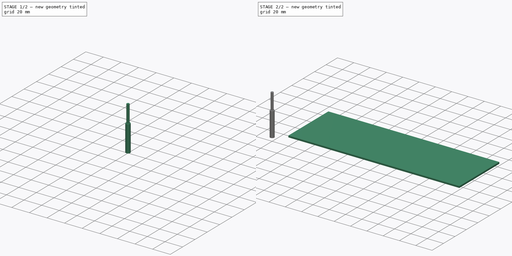
[diagram: build sequence overview — one tinted view per stage of 2, left to right]
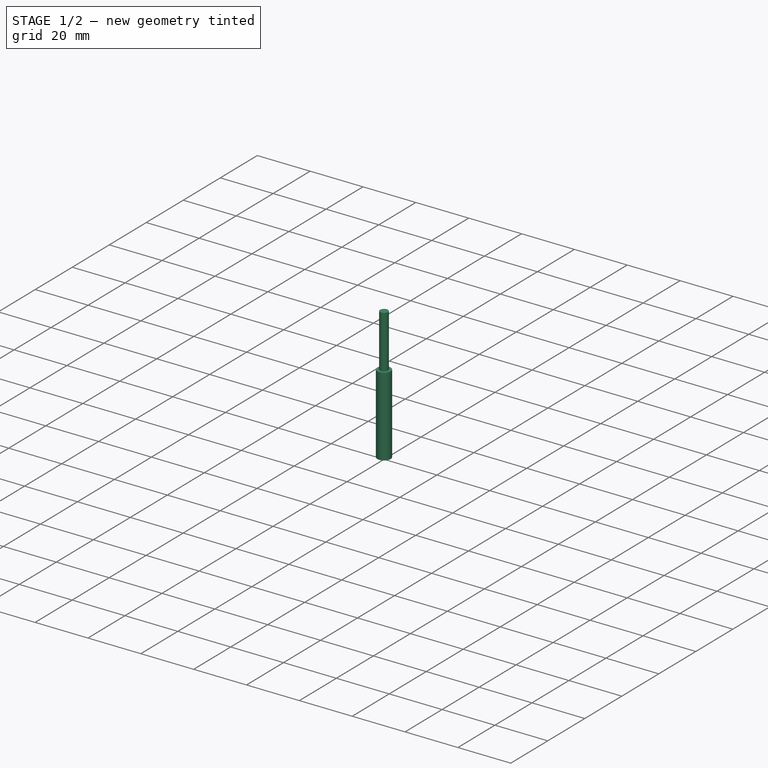
[diagram: stage 1 of 2 — iso view after this stage's code; geometry added in this stage tinted green]
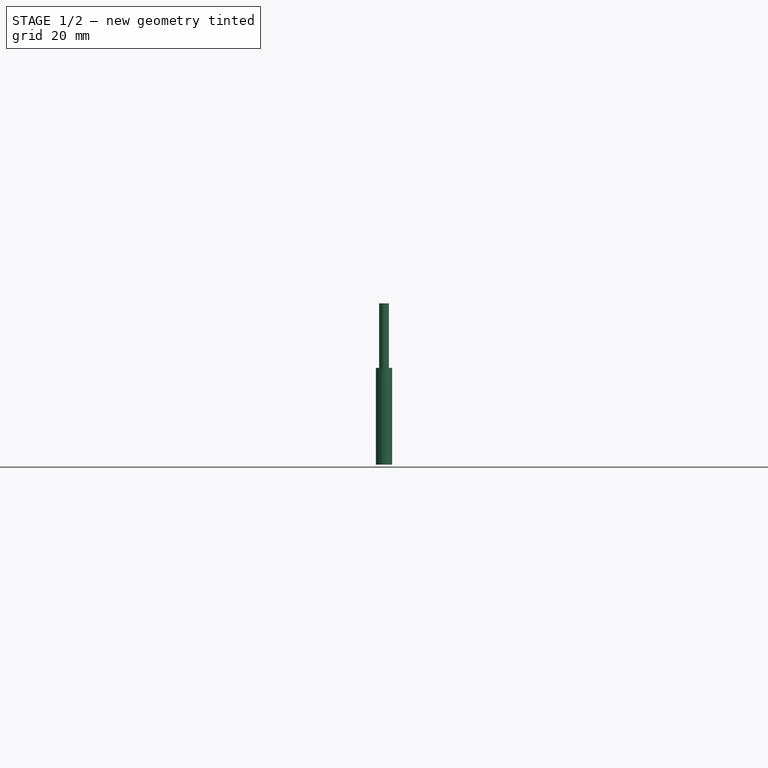
[diagram: stage 1 of 2 — front view after this stage's code; geometry added in this stage tinted green]
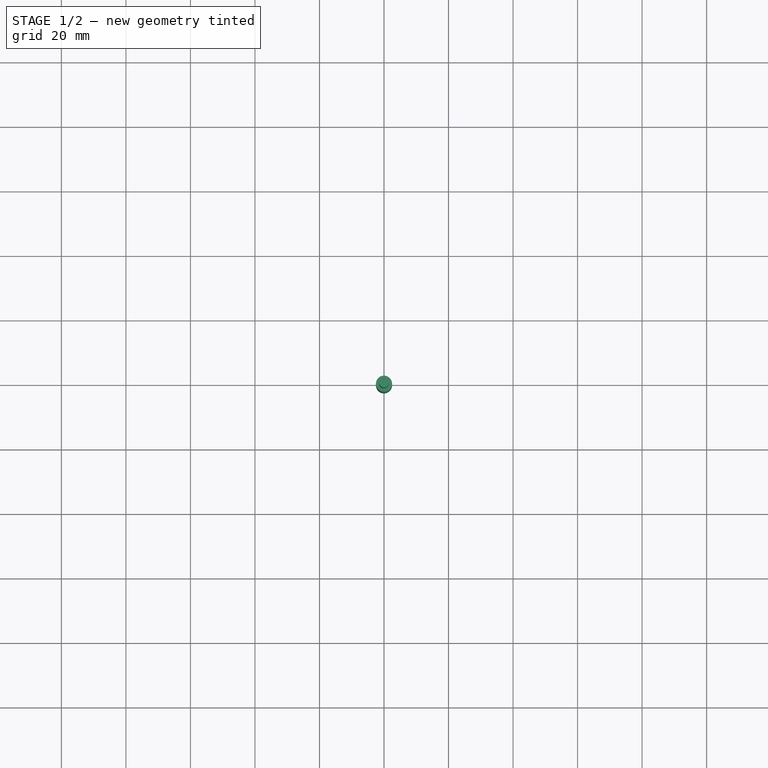
[diagram: stage 1 of 2 — top view after this stage's code; geometry added in this stage tinted green]
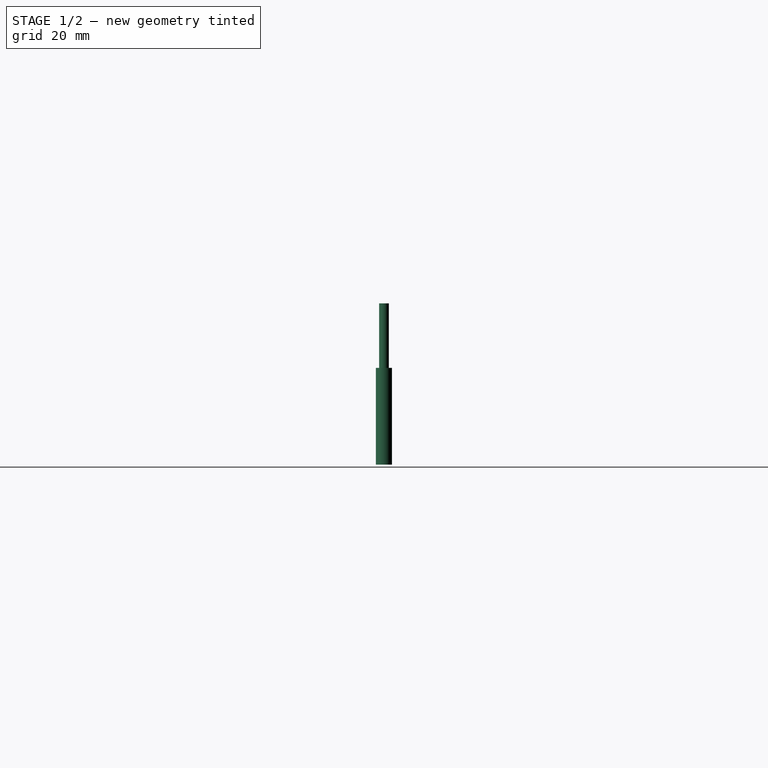
[diagram: stage 1 of 2 — right view after this stage's code; geometry added in this stage tinted green]
FCSTD DOCUMENT  (FreeCAD 1.0R39109 (Git))
Label: engineframe
License: All rights reserved
LicenseURL: https://en.wikipedia.org/wiki/All_rights_reserved
objects: Sketcher::SketchObject×3, App::DocumentObjectGroup×3, Path::FeaturePython×3, Part::FeaturePython×2, PartDesign::Body×1, App::FeaturePython×1, Part::Part2DObjectPython×1
note: 10 computed .brp shape members not serialized (recipe doc carries the construction recipe); baked Part::Feature solids carry a one-line shape summary decoded from their .brp

FEATURE [Sketcher::SketchObject] Sketch  label="A4"
  ArcFitTolerance = 1e-06
  AttachmentSupport = -> [XY_Plane]
  FullyConstrained = true
  MakeInternals = false
  MapMode = 5
  sketch-geometry (4):
    g0: LineSegment StartX=0 StartY=0 StartZ=0 EndX=270 EndY=0 EndZ=0
    g1: LineSegment StartX=270 StartY=0 StartZ=0 EndX=270 EndY=180 EndZ=0
    g2: LineSegment StartX=270 StartY=180 StartZ=0 EndX=0 EndY=180 EndZ=0
    g3: LineSegment StartX=0 StartY=180 StartZ=0 EndX=0 EndY=0 EndZ=0
  constraints (12):
    c: Coincident(g0,g1)
    c: Coincident(g1,g2)
    c: Coincident(g2,g3)
    c: Coincident(g3,g0)
    c: Horizontal(g0)
    c: Horizontal(g2)
    c: Vertical(g1)
    c: Vertical(g3)
    c: PointOnObject(g0,g-2)
    c: DistanceX(g2,g2) = 270
    c: DistanceY(g3,g3) = 180
    c: PointOnObject(g0,g-1)
FEATURE [PartDesign::Body] Body
  AllowCompound = false
  Group = -> [Sketch]
  Origin = -> Origin
FEATURE [Sketcher::SketchObject] Sketch001
  ArcFitTolerance = 1e-06
  AttachmentSupport = -> [XY_Plane]
  ExternalGeometry = -> [Sketch]
  FullyConstrained = false
  MakeInternals = false
  MapMode = 5
  sketch-geometry (158):
    g0: LineSegment StartX=34.4965 StartY=70.5692 StartZ=0 EndX=34.4965 EndY=49.0692 EndZ=0
    g1: LineSegment StartX=17.4965 StartY=49.0692 StartZ=0 EndX=17.4965 EndY=42.0692 EndZ=0
    g2: LineSegment StartX=17.4965 StartY=42.0692 StartZ=0 EndX=34.4965 EndY=42.0692 EndZ=0
    g3: LineSegment StartX=34.4965 StartY=42.0692 StartZ=0 EndX=34.4965 EndY=20.5692 EndZ=0
    g4: LineSegment StartX=34.4965 StartY=20.5692 StartZ=0 EndX=44.4965 EndY=20.5692 EndZ=0
    g5: LineSegment StartX=44.4965 StartY=70.5692 StartZ=0 EndX=34.4965 EndY=70.5692 EndZ=0
    g6: LineSegment [constr] StartX=270 StartY=180 StartZ=0 EndX=270.343 EndY=90 EndZ=0
    g7: LineSegment [constr] StartX=270.343 StartY=90 StartZ=0 EndX=270 EndY=0 EndZ=0
    g8: LineSegment StartX=44.4965 StartY=20.5692 StartZ=0 EndX=44.4965 EndY=45.5692 EndZ=0
    g9: LineSegment StartX=44.4965 StartY=45.5692 StartZ=0 EndX=44.4965 EndY=70.5692 EndZ=0
    g10: LineSegment [constr] StartX=44.4965 StartY=45.5692 StartZ=0 EndX=48.4965 EndY=45.5692 EndZ=0
    g11: LineSegment StartX=48.4965 StartY=45.5692 StartZ=0 EndX=48.4965 EndY=75.5692 EndZ=0
    g12: LineSegment [constr] StartX=48.4965 StartY=75.5692 StartZ=0 EndX=13.4965 EndY=75.5692 EndZ=0
    g13: LineSegment [constr] StartX=13.4965 StartY=75.5692 StartZ=0 EndX=13.4965 EndY=15.5692 EndZ=0
    g14: LineSegment [constr] StartX=13.4965 StartY=15.5692 StartZ=0 EndX=48.4965 EndY=15.5692 EndZ=0
    g15: LineSegment StartX=48.4965 StartY=15.5692 StartZ=0 EndX=48.4965 EndY=45.5692 EndZ=0
    g16: LineSegment [constr] StartX=80.9965 StartY=75.5692 StartZ=0 EndX=80.9965 EndY=15.5692 EndZ=0
    g17: LineSegment [constr] StartX=80.9965 StartY=15.5692 StartZ=0 EndX=115.996 EndY=15.5692 EndZ=0
    g18: LineSegment [constr] StartX=115.996 StartY=75.5692 StartZ=0 EndX=80.9965 EndY=75.5692 EndZ=0
    g19: LineSegment [constr] StartX=115.996 StartY=75.5692 StartZ=0 EndX=115.996 EndY=15.5692 EndZ=0
    g20: LineSegment [constr] StartX=115.996 StartY=15.5692 StartZ=0 EndX=150.996 EndY=15.5692 EndZ=0
    g21: LineSegment [constr] StartX=150.996 StartY=75.5692 StartZ=0 EndX=115.996 EndY=75.5692 EndZ=0
    g22: LineSegment [constr] StartX=150.996 StartY=75.5692 StartZ=0 EndX=150.996 EndY=15.5692 EndZ=0
    g23: LineSegment [constr] StartX=150.996 StartY=15.5692 StartZ=0 EndX=185.996 EndY=15.5692 EndZ=0
    g24: LineSegment [constr] StartX=185.996 StartY=75.5692 StartZ=0 EndX=150.996 EndY=75.5692 EndZ=0
    g25: LineSegment [constr] StartX=185.996 StartY=75.5692 StartZ=0 EndX=185.996 EndY=15.5692 EndZ=0
    g26: LineSegment [constr] StartX=185.996 StartY=15.5692 StartZ=0 EndX=220.996 EndY=15.5692 EndZ=0
    g27: LineSegment [constr] StartX=220.996 StartY=75.5692 StartZ=0 EndX=185.996 EndY=75.5692 EndZ=0
    g28: LineSegment StartX=48.4965 StartY=15.5692 StartZ=0 EndX=35.9965 EndY=15.5692 EndZ=0
    g29: LineSegment StartX=35.9965 StartY=15.5692 StartZ=0 EndX=35.9965 EndY=11.5692 EndZ=0
    g30: LineSegment StartX=35.9965 StartY=11.5692 StartZ=0 EndX=25.9965 EndY=11.5692 EndZ=0
    g31: LineSegment StartX=25.9965 StartY=11.5692 StartZ=0 EndX=25.9965 EndY=15.5692 EndZ=0
    g32: LineSegment StartX=25.9965 StartY=15.5692 StartZ=0 EndX=13.4965 EndY=15.5692 EndZ=0
    g33: LineSegment [constr] StartX=220.996 StartY=75.5692 StartZ=0 EndX=220.996 EndY=45.5692 EndZ=0
    g34: LineSegment [constr] StartX=220.996 StartY=45.5692 StartZ=0 EndX=220.996 EndY=15.5692 EndZ=0
    g35: LineSegment [constr] StartX=220.996 StartY=45.5692 StartZ=0 EndX=80.9965 EndY=45.5692 EndZ=0
    g36: LineSegment [constr] StartX=17.4965 StartY=49.0692 StartZ=0 EndX=23.1632 EndY=49.0692 EndZ=0
    g37: LineSegment [constr] StartX=23.1632 StartY=49.0692 StartZ=0 EndX=28.8298 EndY=49.0692 EndZ=0
    g38: LineSegment [constr] StartX=28.8298 StartY=49.0692 StartZ=0 EndX=34.4965 EndY=49.0692 EndZ=0
    g39: LineSegment StartX=34.4965 StartY=49.0692 StartZ=0 EndX=17.4965 EndY=49.0692 EndZ=0
    g40: LineSegment StartX=28.8298 StartY=62.0692 StartZ=0 EndX=28.8298 EndY=57.0692 EndZ=0
    g41: LineSegment StartX=28.8298 StartY=62.0692 StartZ=0 EndX=24.8298 EndY=62.0692 EndZ=0
    g42: LineSegment StartX=24.8298 StartY=62.0692 StartZ=0 EndX=24.8298 EndY=57.0692 EndZ=0
    g43: LineSegment StartX=24.8298 StartY=57.0692 StartZ=0 EndX=28.8298 EndY=57.0692 EndZ=0
    g44: LineSegment [constr] StartX=28.8298 StartY=49.0692 StartZ=0 EndX=28.8298 EndY=57.0692 EndZ=0
    g45: LineSegment [constr] StartX=34.4965 StartY=42.0692 StartZ=0 EndX=34.4965 EndY=49.0692 EndZ=0
    g46: LineSegment [constr] StartX=28.8298 StartY=42.0692 StartZ=0 EndX=28.8298 EndY=34.0692 EndZ=0
    g47: LineSegment [constr] StartX=28.8298 StartY=42.0692 StartZ=0 EndX=28.8298 EndY=49.0692 EndZ=0
    g48: LineSegment StartX=28.8298 StartY=34.0692 StartZ=0 EndX=24.8298 EndY=34.0692 EndZ=0
    g49: LineSegment StartX=24.8298 StartY=34.0692 StartZ=0 EndX=24.8298 EndY=29.0692 EndZ=0
    g50: LineSegment StartX=24.8298 StartY=29.0692 StartZ=0 EndX=28.8298 EndY=29.0692 EndZ=0
    g51: LineSegment StartX=28.8298 StartY=29.0692 StartZ=0 EndX=28.8298 EndY=34.0692 EndZ=0
    g52: LineSegment StartX=48.4965 StartY=75.5692 StartZ=0 EndX=35.9965 EndY=75.5692 EndZ=0
    g53: LineSegment StartX=35.9965 StartY=75.5692 StartZ=0 EndX=35.9965 EndY=79.5692 EndZ=0
    g54: LineSegment StartX=35.9965 StartY=79.5692 StartZ=0 EndX=25.9965 EndY=79.5692 EndZ=0
    g55: LineSegment StartX=25.9965 StartY=79.5692 StartZ=0 EndX=25.9965 EndY=75.5692 EndZ=0
    g56: LineSegment StartX=25.9965 StartY=75.5692 StartZ=0 EndX=13.4965 EndY=75.5692 EndZ=0
    g57: LineSegment [constr] StartX=35.9965 StartY=79.5692 StartZ=0 EndX=220.996 EndY=79.5692 EndZ=0
    g58: LineSegment [constr] StartX=220.996 StartY=79.5692 StartZ=0 EndX=220.996 EndY=75.5692 EndZ=0
    g59: LineSegment [constr] StartX=220.996 StartY=15.5692 StartZ=0 EndX=220.996 EndY=11.5692 EndZ=0
    g60: LineSegment [constr] StartX=220.996 StartY=11.5692 StartZ=0 EndX=35.9965 EndY=11.5692 EndZ=0
    g61: LineSegment StartX=80.9965 StartY=15.5692 StartZ=0 EndX=80.9965 EndY=11.5692 EndZ=0
    g62: LineSegment StartX=80.9965 StartY=11.5692 StartZ=0 EndX=93.4965 EndY=11.5692 EndZ=0
    g63: LineSegment StartX=93.4965 StartY=11.5692 StartZ=0 EndX=93.4965 EndY=15.5692 EndZ=0
    g64: LineSegment StartX=93.4965 StartY=15.5692 StartZ=0 EndX=103.496 EndY=15.5692 EndZ=0
    g65: LineSegment StartX=103.496 StartY=15.5692 StartZ=0 EndX=103.496 EndY=11.5692 EndZ=0
    g66: LineSegment StartX=103.496 StartY=11.5692 StartZ=0 EndX=115.996 EndY=11.5692 EndZ=0
    g67: LineSegment StartX=115.996 StartY=11.5692 StartZ=0 EndX=115.996 EndY=15.5692 EndZ=0
    g68: LineSegment StartX=80.9965 StartY=15.5692 StartZ=0 EndX=80.9965 EndY=75.5692 EndZ=0
    g69: LineSegment StartX=80.9965 StartY=75.5692 StartZ=0 EndX=80.9965 EndY=79.5692 EndZ=0
    g70: LineSegment StartX=80.9965 StartY=79.5692 StartZ=0 EndX=93.4965 EndY=79.5692 EndZ=0
    g71: LineSegment StartX=93.4965 StartY=79.5692 StartZ=0 EndX=93.4965 EndY=75.5692 EndZ=0
    g72: LineSegment StartX=93.4965 StartY=75.5692 StartZ=0 EndX=103.496 EndY=75.5692 EndZ=0
    g73: LineSegment StartX=103.496 StartY=75.5692 StartZ=0 EndX=103.496 EndY=79.5692 EndZ=0
    g74: LineSegment StartX=103.496 StartY=79.5692 StartZ=0 EndX=115.996 EndY=79.5692 EndZ=0
    g75: LineSegment StartX=115.996 StartY=79.5692 StartZ=0 EndX=115.996 EndY=75.5692 EndZ=0
    g76: LineSegment [constr] StartX=93.4965 StartY=15.5692 StartZ=0 EndX=93.4965 EndY=75.5692 EndZ=0
    g77: LineSegment [constr] StartX=103.496 StartY=15.5692 StartZ=0 EndX=103.496 EndY=75.5692 EndZ=0
    g78: LineSegment StartX=115.996 StartY=75.5692 StartZ=0 EndX=115.996 EndY=15.5692 EndZ=0
    g79: LineSegment StartX=150.996 StartY=75.5692 StartZ=0 EndX=150.996 EndY=15.5692 EndZ=0
    g80: LineSegment StartX=185.996 StartY=75.5692 StartZ=0 EndX=185.996 EndY=15.5692 EndZ=0
    g81: LineSegment StartX=93.4965 StartY=45.5692 StartZ=0 EndX=93.4965 EndY=47.5692 EndZ=0
    g82: LineSegment StartX=93.4965 StartY=47.5692 StartZ=0 EndX=103.496 EndY=47.5692 EndZ=0
    g83: LineSegment StartX=103.496 StartY=47.5692 StartZ=0 EndX=103.496 EndY=43.5692 EndZ=0
    g84: LineSegment StartX=103.496 StartY=43.5692 StartZ=0 EndX=93.4965 EndY=43.5692 EndZ=0
    g85: LineSegment StartX=93.4965 StartY=43.5692 StartZ=0 EndX=93.4965 EndY=45.5692 EndZ=0
    g86: LineSegment StartX=115.996 StartY=79.5692 StartZ=0 EndX=128.496 EndY=79.5692 EndZ=0
    g87: LineSegment StartX=128.496 StartY=79.5692 StartZ=0 EndX=128.496 EndY=75.5692 EndZ=0
    g88: LineSegment StartX=128.496 StartY=75.5692 StartZ=0 EndX=138.496 EndY=75.5692 EndZ=0
    g89: LineSegment StartX=138.496 StartY=75.5692 StartZ=0 EndX=138.496 EndY=79.5692 EndZ=0
    g90: LineSegment StartX=138.496 StartY=79.5692 StartZ=0 EndX=150.996 EndY=79.5692 EndZ=0
    g91: LineSegment StartX=150.996 StartY=79.5692 StartZ=0 EndX=150.996 EndY=75.5692 EndZ=0
    g92: LineSegment [constr] StartX=128.496 StartY=75.5692 StartZ=0 EndX=128.496 EndY=15.5692 EndZ=0
    g93: LineSegment [constr] StartX=138.496 StartY=75.5692 StartZ=0 EndX=138.496 EndY=15.5692 EndZ=0
    g94: LineSegment StartX=115.996 StartY=11.5692 StartZ=0 EndX=128.496 EndY=11.5692 EndZ=0
    g95: LineSegment StartX=128.496 StartY=11.5692 StartZ=0 EndX=128.496 EndY=15.5692 EndZ=0
    g96: LineSegment StartX=128.496 StartY=15.5692 StartZ=0 EndX=138.496 EndY=15.5692 EndZ=0
    g97: LineSegment StartX=138.496 StartY=15.5692 StartZ=0 EndX=138.496 EndY=11.5692 EndZ=0
    g98: LineSegment StartX=138.496 StartY=11.5692 StartZ=0 EndX=150.996 EndY=11.5692 EndZ=0
    g99: LineSegment StartX=150.996 StartY=11.5692 StartZ=0 EndX=150.996 EndY=15.5692 EndZ=0
    g100: LineSegment StartX=128.496 StartY=43.5692 StartZ=0 EndX=128.496 EndY=47.5692 EndZ=0
    g101: LineSegment StartX=128.496 StartY=47.5692 StartZ=0 EndX=138.496 EndY=47.5692 EndZ=0
    g102: LineSegment StartX=138.496 StartY=47.5692 StartZ=0 EndX=138.496 EndY=43.5692 EndZ=0
    g103: LineSegment StartX=138.496 StartY=43.5692 StartZ=0 EndX=128.496 EndY=43.5692 EndZ=0
    g104: LineSegment [constr] StartX=103.496 StartY=47.5692 StartZ=0 EndX=128.496 EndY=47.5692 EndZ=0
    g105: LineSegment [constr] StartX=103.496 StartY=43.5692 StartZ=0 EndX=128.496 EndY=43.5692 EndZ=0
    g106: LineSegment StartX=150.996 StartY=75.5692 StartZ=0 EndX=163.496 EndY=75.5692 EndZ=0
    g107: LineSegment StartX=163.496 StartY=75.5692 StartZ=0 EndX=163.496 EndY=79.5692 EndZ=0
    g108: LineSegment StartX=163.496 StartY=79.5692 StartZ=0 EndX=173.496 EndY=79.5692 EndZ=0
    g109: LineSegment StartX=173.496 StartY=79.5692 StartZ=0 EndX=173.496 EndY=75.5692 EndZ=0
    g110: LineSegment StartX=173.496 StartY=75.5692 StartZ=0 EndX=185.996 EndY=75.5692 EndZ=0
    g111: LineSegment StartX=185.996 StartY=75.5692 StartZ=0 EndX=198.496 EndY=75.5692 EndZ=0
    g112: LineSegment StartX=198.496 StartY=75.5692 StartZ=0 EndX=198.496 EndY=79.5692 EndZ=0
    g113: LineSegment StartX=198.496 StartY=79.5692 StartZ=0 EndX=208.496 EndY=79.5692 EndZ=0
    g114: LineSegment StartX=208.496 StartY=79.5692 StartZ=0 EndX=208.496 EndY=75.5692 EndZ=0
    g115: LineSegment StartX=208.496 StartY=75.5692 StartZ=0 EndX=220.996 EndY=75.5692 EndZ=0
    g116: LineSegment StartX=220.996 StartY=75.5692 StartZ=0 EndX=220.996 EndY=15.5692 EndZ=0
    g117: LineSegment [constr] StartX=163.496 StartY=75.5692 StartZ=0 EndX=163.496 EndY=15.5692 EndZ=0
    g118: LineSegment [constr] StartX=173.496 StartY=75.5692 StartZ=0 EndX=173.496 EndY=15.5692 EndZ=0
    g119: LineSegment [constr] StartX=198.496 StartY=75.5692 StartZ=0 EndX=198.496 EndY=15.5692 EndZ=0
    g120: LineSegment [constr] StartX=208.496 StartY=75.5692 StartZ=0 EndX=208.496 EndY=15.5692 EndZ=0
    g121: LineSegment StartX=150.996 StartY=15.5692 StartZ=0 EndX=163.496 EndY=15.5692 EndZ=0
    g122: LineSegment StartX=163.496 StartY=15.5692 StartZ=0 EndX=163.496 EndY=11.5692 EndZ=0
    g123: LineSegment StartX=163.496 StartY=11.5692 StartZ=0 EndX=173.496 EndY=11.5692 EndZ=0
    g124: LineSegment StartX=173.496 StartY=11.5692 StartZ=0 EndX=173.496 EndY=15.5692 EndZ=0
    g125: LineSegment StartX=173.496 StartY=15.5692 StartZ=0 EndX=198.496 EndY=15.5692 EndZ=0
    g126: LineSegment StartX=198.496 StartY=15.5692 StartZ=0 EndX=198.496 EndY=11.5692 EndZ=0
    g127: LineSegment StartX=198.496 StartY=11.5692 StartZ=0 EndX=208.496 EndY=11.5692 EndZ=0
    g128: LineSegment StartX=208.496 StartY=11.5692 StartZ=0 EndX=208.496 EndY=15.5692 EndZ=0
    g129: LineSegment StartX=208.496 StartY=15.5692 StartZ=0 EndX=220.996 EndY=15.5692 EndZ=0
    g130: LineSegment [constr] StartX=28.8298 StartY=62.0692 StartZ=0 EndX=78.8298 EndY=62.0692 EndZ=0
    g131: LineSegment [constr] StartX=28.8298 StartY=29.0692 StartZ=0 EndX=78.8298 EndY=29.0692 EndZ=0
    g132: LineSegment [constr] StartX=78.8298 StartY=29.0692 StartZ=0 EndX=78.8298 EndY=62.0692 EndZ=0
    g133: LineSegment [constr] StartX=28.8298 StartY=57.0692 StartZ=0 EndX=78.8298 EndY=57.0692 EndZ=0
    g134: LineSegment [constr] StartX=34.4965 StartY=49.0692 StartZ=0 EndX=78.8298 EndY=49.0692 EndZ=0
    g135: LineSegment [constr] StartX=34.4965 StartY=42.0692 StartZ=0 EndX=78.8298 EndY=42.0692 EndZ=0
    g136: LineSegment [constr] StartX=28.8298 StartY=34.0692 StartZ=0 EndX=78.8298 EndY=34.0692 EndZ=0
    g137: LineSegment [constr] StartX=35.9965 StartY=75.5692 StartZ=0 EndX=35.9965 EndY=15.5692 EndZ=0
    g138: LineSegment [constr] StartX=25.9965 StartY=75.5692 StartZ=0 EndX=25.9965 EndY=15.5692 EndZ=0
    g139: Circle [constr] CenterX=63.4965 CenterY=45.5692 CenterZ=0 NormalX=0 NormalY=0 NormalZ=1 AngleXU=0 Radius=3.5
    g140: LineSegment [constr] StartX=63.4965 StartY=45.5692 StartZ=0 EndX=63.4965 EndY=62.0692 EndZ=0
    g141: LineSegment [constr] StartX=63.4965 StartY=45.5692 StartZ=0 EndX=63.4965 EndY=29.0692 EndZ=0
    g142: LineSegment StartX=63.4965 StartY=62.0692 StartZ=0 EndX=67.4965 EndY=62.0692 EndZ=0
    g143: LineSegment StartX=67.4965 StartY=62.0692 StartZ=0 EndX=67.4965 EndY=57.0692 EndZ=0
    g144: LineSegment StartX=67.4965 StartY=57.0692 StartZ=0 EndX=63.4965 EndY=57.0692 EndZ=0
    g145: LineSegment StartX=63.4965 StartY=57.0692 StartZ=0 EndX=63.4965 EndY=49.0692 EndZ=0
    g146: LineSegment StartX=63.4965 StartY=42.0692 StartZ=0 EndX=63.4965 EndY=34.0692 EndZ=0
    g147: LineSegment StartX=63.4965 StartY=34.0692 StartZ=0 EndX=67.4965 EndY=34.0692 EndZ=0
    g148: LineSegment StartX=67.4965 StartY=34.0692 StartZ=0 EndX=67.4965 EndY=29.0692 EndZ=0
    g149: LineSegment StartX=67.4965 StartY=29.0692 StartZ=0 EndX=63.4965 EndY=29.0692 EndZ=0
    g150: ArcOfCircle CenterX=63.4965 CenterY=45.5692 CenterZ=0 NormalX=0 NormalY=0 NormalZ=1 AngleXU=0 Radius=3.5 StartAngle=1.5708 EndAngle=4.71239
    g151: LineSegment StartX=58.4965 StartY=42.0692 StartZ=0 EndX=58.4965 EndY=49.0692 EndZ=0
    g152: LineSegment StartX=63.4965 StartY=62.0692 StartZ=0 EndX=61.4965 EndY=62.0692 EndZ=0
    g153: LineSegment StartX=61.4965 StartY=62.0692 StartZ=0 EndX=58.4965 EndY=49.0692 EndZ=0
    g154: LineSegment StartX=63.4965 StartY=29.0692 StartZ=0 EndX=61.4965 EndY=29.0692 EndZ=0
    g155: LineSegment StartX=61.4965 StartY=29.0692 StartZ=0 EndX=58.4965 EndY=42.0692 EndZ=0
    g156: LineSegment StartX=13.4965 StartY=15.5692 StartZ=0 EndX=13.4965 EndY=75.5692 EndZ=0
    g157: LineSegment [constr] StartX=67.4965 StartY=34.0692 StartZ=0 EndX=67.4965 EndY=57.0692 EndZ=0
  constraints (430):
    c: Vertical(g0)
    c: Vertical(g1)
    c: Coincident(g2,g1)
    c: Horizontal(g2)
    c: Coincident(g3,g2)
    c: Vertical(g3)
    c: Coincident(g4,g3)
    c: Coincident(g5,g0)
    c: Horizontal(g5)
    c: Horizontal(g4)
    c: Equal(g0,g3)
    c: DistanceY(g1,g1) = 7
    c: DistanceX(g1,g0) = 17
    c: DistanceX(g5,g5) = 10
    c: DistanceY(g4,g5) = 50
    c: Coincident(g7,g6)
    c: PointOnObject(g7,g-1)
    c: Coincident(g6,g-4)
    c: PointOnObject(g7,g-3)
    c: Equal(g7,g6)
    c: Coincident(g8,g4)
    c: Vertical(g8)
    c: Coincident(g9,g8)
    c: Coincident(g9,g5)
    c: Vertical(g9)
    c: Equal(g8,g9)
    c: DistanceX(g1,g5) = 27
    c: Coincident(g10,g8)
    c: Horizontal(g10)
    c: Coincident(g11,g10)
    c: Vertical(g11)
    c: Coincident(g12,g11)
    c: Horizontal(g12)
    c: Coincident(g13,g12)
    c: Vertical(g13)
    c: Coincident(g14,g13)
    c: Horizontal(g14)
    c: Coincident(g15,g14)
    c: Coincident(g15,g10)
    c: Vertical(g15)
    c: Equal(g15,g11)
    c: Coincident(g16,g17)
    c: Coincident(g18,g16)
    c: Vertical(g16)
    c: Horizontal(g17)
    c: Horizontal(g18)
    c: Coincident(g19,g20)
    c: Coincident(g21,g19)
    c: Vertical(g19)
    c: Horizontal(g20)
    c: Horizontal(g21)
    c: Coincident(g22,g23)
    c: Coincident(g24,g22)
    c: Vertical(g22)
    c: Horizontal(g23)
    c: Horizontal(g24)
    c: Coincident(g25,g26)
    c: Coincident(g27,g25)
    c: Vertical(g25)
    c: Horizontal(g26)
    c: Horizontal(g27)
    c: Coincident(g17,g19)
    c: Coincident(g22,g20)
    c: Coincident(g23,g25)
    c: Equal(g17,g20)
    c: Equal(g23,g26)
    c: Equal(g20,g23)
    c: Equal(g16,g13)
    c: Horizontal(g16,g14)
    c: Coincident(g19,g18)
    c: Coincident(g22,g21)
    c: Coincident(g25,g24)
    c: Coincident(g28,g14)
    c: PointOnObject(g28,g14)
    c: Coincident(g29,g28)
    c: Vertical(g29)
    c: Coincident(g30,g29)
    c: Horizontal(g30)
    c: Coincident(g31,g30)
    c: PointOnObject(g31,g14)
    c: Vertical(g31)
    c: Coincident(g32,g31)
    c: Coincident(g32,g13)
    c: Equal(g28,g32)
    c: DistanceY(g29,g29) = 4
    c: DistanceX(g10,g10) = 4
    c: DistanceX(g30,g30) = 10
    c: DistanceX(g12,g12) = 35
    c: Equal(g18,g14)
    c: Coincident(g33,g27)
    c: Vertical(g33)
    c: Coincident(g34,g33)
    c: Coincident(g34,g26)
    c: Vertical(g34)
    c: Equal(g34,g33)
    c: Coincident(g35,g33)
    c: Symmetric(g16,g16,g35)
    c: Coincident(g36,g1)
    c: Horizontal(g36)
    c: Coincident(g37,g36)
    c: Horizontal(g37)
    c: Coincident(g38,g37)
    c: Coincident(g38,g0)
    c: Horizontal(g38)
    c: Equal(g38,g36)
    c: Equal(g38,g37)
    c: Coincident(g39,g0)
    c: Coincident(g39,g1)
    c: Vertical(g40)
    c: Vertical(g40,g37)
    c: Coincident(g41,g40)
    c: Horizontal(g41)
    c: Coincident(g42,g41)
    c: Vertical(g42)
    c: Coincident(g43,g42)
    c: Coincident(g43,g40)
    c: Horizontal(g43)
    c: DistanceX(g41,g41) = 4
    c: Coincident(g44,g37)
    c: Coincident(g44,g40)
    c: DistanceY(g40,g40) = 5
    c: Coincident(g45,g2)
    c: Coincident(g45,g0)
    c: Vertical(g45)
    c: DistanceY(g44,g44) = 8
    c: PointOnObject(g46,g2)
    c: Vertical(g46)
    c: Coincident(g47,g46)
    c: Coincident(g47,g37)
    c: Vertical(g47)
    c: Equal(g44,g46)
    c: Coincident(g48,g49)
    c: Coincident(g49,g50)
    c: Coincident(g50,g51)
    c: Coincident(g51,g48)
    c: Horizontal(g48)
    c: Horizontal(g50)
    c: Vertical(g49)
    c: Vertical(g51)
    c: Coincident(g48,g46)
    c: Equal(g49,g42)
    c: Equal(g48,g41)
    c: Coincident(g52,g11)
    c: PointOnObject(g52,g12)
    c: Coincident(g53,g52)
    c: Vertical(g53)
    c: Coincident(g54,g53)
    c: Horizontal(g54)
    c: Coincident(g55,g54)
    c: PointOnObject(g55,g12)
    c: Vertical(g55)
    c: Coincident(g56,g55)
    c: Coincident(g56,g12)
    c: Equal(g53,g29)
    c: Equal(g28,g52)
    c: Equal(g56,g32)
    c: Coincident(g57,g53)
    c: Horizontal(g57)
    c: Coincident(g58,g57)
    c: Coincident(g58,g27)
    c: Coincident(g59,g26)
    c: Coincident(g60,g59)
    c: Coincident(g60,g29)
    c: Horizontal(g60)
    c: Vertical(g59)
    c: Vertical(g58)
    c: Coincident(g61,g16)
    c: PointOnObject(g61,g60)
    c: Vertical(g61)
    c: Coincident(g62,g61)
    c: PointOnObject(g62,g60)
    c: Coincident(g63,g62)
    c: PointOnObject(g63,g17)
    c: Vertical(g63)
    c: Coincident(g64,g63)
    c: PointOnObject(g64,g17)
    c: Coincident(g65,g64)
    c: PointOnObject(g65,g60)
    c: Vertical(g65)
    c: Coincident(g66,g65)
    c: PointOnObject(g66,g60)
    c: Coincident(g67,g66)
    c: Coincident(g67,g17)
    c: Vertical(g67)
    c: Coincident(g68,g16)
    c: Coincident(g68,g16)
    c: Coincident(g69,g16)
    c: PointOnObject(g69,g57)
    c: Vertical(g69)
    c: Coincident(g70,g69)
    c: PointOnObject(g70,g57)
    c: Coincident(g71,g70)
    c: PointOnObject(g71,g18)
    c: Vertical(g71)
    c: Coincident(g72,g71)
    c: PointOnObject(g72,g18)
    c: Coincident(g73,g72)
    c: PointOnObject(g73,g57)
    c: Vertical(g73)
    c: Coincident(g74,g73)
    c: PointOnObject(g74,g57)
    c: Coincident(g75,g74)
    c: Coincident(g75,g18)
    c: Vertical(g75)
    c: Coincident(g76,g63)
    c: Coincident(g76,g71)
    c: Vertical(g76)
    c: Coincident(g77,g64)
    c: Coincident(g77,g72)
    c: Vertical(g77)
    c: Equal(g66,g62)
    c: Equal(g64,g30)
    c: DistanceX(g64,g64) = 10
    c: Coincident(g78,g18)
    c: Coincident(g78,g17)
    c: Coincident(g79,g21)
    c: Coincident(g79,g20)
    c: Coincident(g80,g24)
    c: Coincident(g80,g23)
    c: PointOnObject(g81,g35)
    c: PointOnObject(g81,g76)
    c: Vertical(g81)
    c: Coincident(g82,g81)
    c: PointOnObject(g82,g77)
    c: Horizontal(g82)
    c: Coincident(g83,g82)
    c: PointOnObject(g83,g77)
    c: Coincident(g84,g83)
    c: PointOnObject(g84,g76)
    c: Horizontal(g84)
    c: Coincident(g85,g84)
    c: Coincident(g85,g81)
    c: Equal(g85,g81)
    c: DistanceY(g83,g83) = 4
    c: Coincident(g86,g74)
    c: Symmetric(g57,g57,g86)
    c: Coincident(g87,g86)
    c: PointOnObject(g87,g21)
    c: Coincident(g88,g87)
    c: PointOnObject(g88,g21)
    c: Coincident(g89,g88)
    c: PointOnObject(g89,g57)
    c: Vertical(g89)
    c: Coincident(g90,g89)
    c: PointOnObject(g90,g57)
    c: Coincident(g91,g90)
    c: Coincident(g91,g21)
    c: Coincident(g92,g87)
    c: PointOnObject(g92,g20)
    c: Vertical(g92)
    c: Coincident(g93,g88)
    c: PointOnObject(g93,g20)
    c: Vertical(g93)
    c: Coincident(g94,g66)
    c: Symmetric(g60,g60,g94)
    c: Coincident(g95,g94)
    c: Coincident(g95,g92)
    c: Coincident(g96,g92)
    c: Coincident(g96,g93)
    c: Coincident(g97,g93)
    c: PointOnObject(g97,g60)
    c: Coincident(g98,g97)
    c: PointOnObject(g98,g60)
    c: Coincident(g99,g98)
    c: Coincident(g99,g20)
    c: Vertical(g99)
    c: Equal(g66,g94)
    c: Equal(g30,g96)
    c: Vertical(g95)
    c: Vertical(g97)
    c: DistanceX(g94,g97) = 10
    c: Vertical(g91)
    c: PointOnObject(g100,g92)
    c: PointOnObject(g100,g92)
    c: Coincident(g101,g100)
    c: PointOnObject(g101,g93)
    c: Horizontal(g101)
    c: Coincident(g102,g101)
    c: PointOnObject(g102,g93)
    c: Coincident(g103,g102)
    c: Coincident(g103,g100)
    c: Coincident(g104,g82)
    c: Coincident(g104,g100)
    c: Coincident(g105,g83)
    c: Coincident(g105,g100)
    c: Horizontal(g105)
    c: Horizontal(g104)
    c: Horizontal(g103)
    c: Coincident(g106,g21)
    c: PointOnObject(g106,g24)
    c: Coincident(g107,g106)
    c: PointOnObject(g107,g57)
    c: Vertical(g107)
    c: Coincident(g108,g107)
    c: PointOnObject(g108,g57)
    c: Coincident(g109,g108)
    c: PointOnObject(g109,g24)
    c: Vertical(g109)
    c: Coincident(g110,g109)
    c: Coincident(g110,g24)
    c: Coincident(g111,g24)
    c: PointOnObject(g111,g27)
    c: Coincident(g112,g111)
    c: PointOnObject(g112,g57)
    c: Coincident(g113,g112)
    c: PointOnObject(g113,g57)
    c: Coincident(g114,g113)
    c: PointOnObject(g114,g27)
    c: Coincident(g115,g114)
    c: Coincident(g115,g27)
    c: Coincident(g116,g27)
    c: Coincident(g116,g26)
    c: Equal(g108,g113)
    c: Equal(g113,g54)
    c: Vertical(g112)
    c: Vertical(g114)
    c: Equal(g90,g106)
    c: Equal(g90,g111)
    c: Coincident(g117,g106)
    c: PointOnObject(g117,g23)
    c: Vertical(g117)
    c: Coincident(g118,g109)
    c: PointOnObject(g118,g23)
    c: Vertical(g118)
    c: Coincident(g119,g111)
    c: PointOnObject(g119,g26)
    c: Vertical(g119)
    c: Coincident(g120,g114)
    c: PointOnObject(g120,g26)
    c: Vertical(g120)
    c: Coincident(g121,g20)
    c: Coincident(g121,g117)
    c: Coincident(g122,g117)
    c: PointOnObject(g122,g60)
    c: Vertical(g122)
    c: Coincident(g123,g122)
    c: PointOnObject(g123,g60)
    c: Coincident(g124,g123)
    c: Coincident(g124,g118)
    c: Vertical(g124)
    c: Coincident(g125,g118)
    c: Coincident(g125,g119)
    c: Coincident(g126,g119)
    c: PointOnObject(g126,g60)
    c: Vertical(g126)
    c: Coincident(g127,g126)
    c: PointOnObject(g127,g60)
    c: Coincident(g128,g127)
    c: Coincident(g128,g120)
    c: Coincident(g129,g120)
    c: Coincident(g129,g26)
    c: Vertical(g128)
    c: Coincident(g130,g40)
    c: Horizontal(g130)
    c: Coincident(g131,g50)
    c: Horizontal(g131)
    c: Coincident(g132,g131)
    c: Coincident(g132,g130)
    c: Vertical(g132)
    c: Coincident(g133,g40)
    c: PointOnObject(g133,g132)
    c: Horizontal(g133)
    c: Coincident(g134,g0)
    c: PointOnObject(g134,g132)
    c: Horizontal(g134)
    c: Coincident(g135,g2)
    c: PointOnObject(g135,g132)
    c: Horizontal(g135)
    c: Coincident(g136,g46)
    c: PointOnObject(g136,g132)
    c: Horizontal(g136)
    c: Coincident(g137,g52)
    c: Coincident(g137,g28)
    c: Coincident(g138,g55)
    c: Coincident(g138,g31)
    c: DistanceX(g130,g130) = 50
    c: Tangent(g139,g134)
    c: Tangent(g139,g135)
    c: Coincident(g140,g139)
    c: PointOnObject(g140,g130)
    c: Vertical(g140)
    c: Coincident(g141,g139)
    c: PointOnObject(g141,g131)
    c: Vertical(g141)
    c: Coincident(g142,g140)
    c: PointOnObject(g142,g130)
    c: Coincident(g143,g142)
    c: PointOnObject(g143,g133)
    c: Vertical(g143)
    c: Coincident(g144,g143)
    c: PointOnObject(g144,g140)
    c: Horizontal(g144)
    c: Coincident(g145,g144)
    c: PointOnObject(g145,g140)
    c: PointOnObject(g146,g141)
    c: PointOnObject(g146,g136)
    c: Vertical(g146)
    c: Coincident(g147,g146)
    c: PointOnObject(g147,g136)
    c: Coincident(g148,g147)
    c: PointOnObject(g148,g131)
    c: Vertical(g148)
    c: Coincident(g149,g148)
    c: Coincident(g149,g141)
    c: Coincident(g150,g145)
    c: Coincident(g150,g146)
    c: PointOnObject(g146,g135)
    c: PointOnObject(g145,g134)
    c: PointOnObject(g151,g134)
    c: PointOnObject(g151,g135)
    c: Vertical(g151)
    c: DistanceX(g151,g150) = 5
    c: Coincident(g152,g140)
    c: PointOnObject(g152,g130)
    c: Coincident(g153,g152)
    c: Coincident(g153,g151)
    c: Coincident(g154,g141)
    c: PointOnObject(g154,g131)
    c: Coincident(g155,g154)
    c: Coincident(g155,g151)
    c: Equal(g154,g152)
    c: DistanceX(g142,g142) = 4
    c: DistanceX(g152,g152) = 2
    c: Coincident(g156,g13)
    c: Coincident(g156,g12)
    c: DistanceY(g156,g156) = 60
    c: Coincident(g157,g147)
    c: Coincident(g157,g143)
    c: Vertical(g157)
    c: DistanceX(g14,g151) = 10
FEATURE [App::FeaturePython] SetupSheet  # Path/CAM operation (typed FeaturePython)
  ClearanceHeightExpression = OpStockZMax+SetupSheet.ClearanceHeightOffset
  ClearanceHeightOffset = 5
  CoolantMode = 0
  CoolantModes = None | Flood | Mist
  FinalDepthExpression = OpFinalDepth
  HorizRapid = 0
  SafeHeightExpression = OpStockZMax+SetupSheet.SafeHeightOffset
  SafeHeightOffset = 3
  StartDepthExpression = OpStartDepth
  StepDownExpression = OpToolDiameter
  VertRapid = 0
FEATURE [Part::Part2DObjectPython] Clone2D  label="Model-Sketch001"  # Draft 2D object (typed FeaturePython)
  Fuse = false
  Objects = -> [Sketch001]
  PathResource = Model
  Scale = (1,1,1)
FEATURE [App::DocumentObjectGroup] Model
  Group = -> [Clone2D]
FEATURE [Part::FeaturePython] ToolBit  label="Endmill"  # Path/CAM toolbit (typed FeaturePython)
  BitPropertyNames = Chipload | CuttingEdgeHeight | Diameter | Flutes | Length | Material | ShankDiameter | SpindleDirection
  BitShape = <path>
  Chipload = 0
  CuttingEdgeHeight = 30
  Diameter = 5
  Flutes = 0
  Length = 50
  Material = 0
  ShankDiameter = 3
  ShapeName = endmill
  SpindleDirection = 0
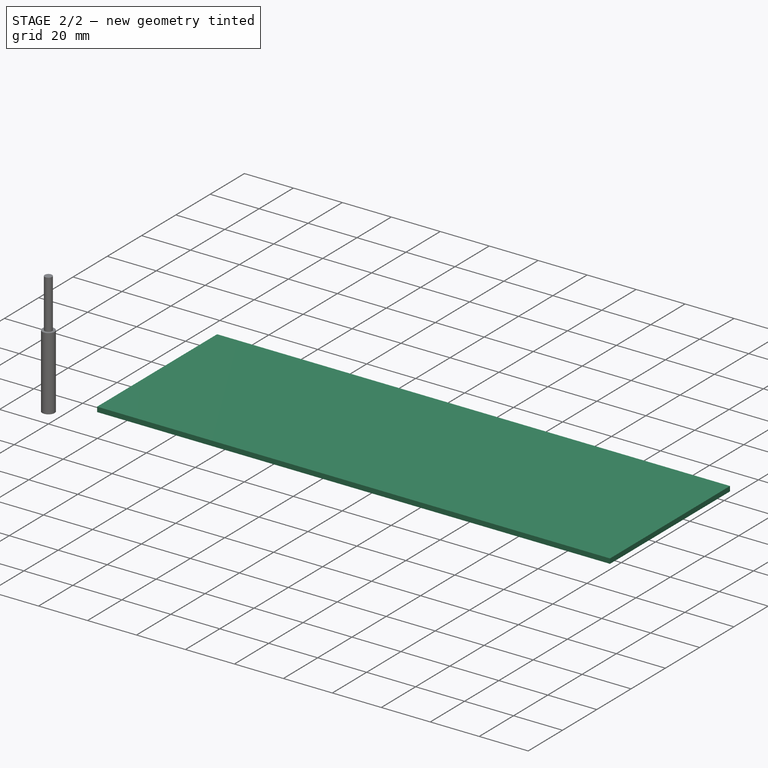
[diagram: stage 2 of 2 — iso view after this stage's code; geometry added in this stage tinted green]
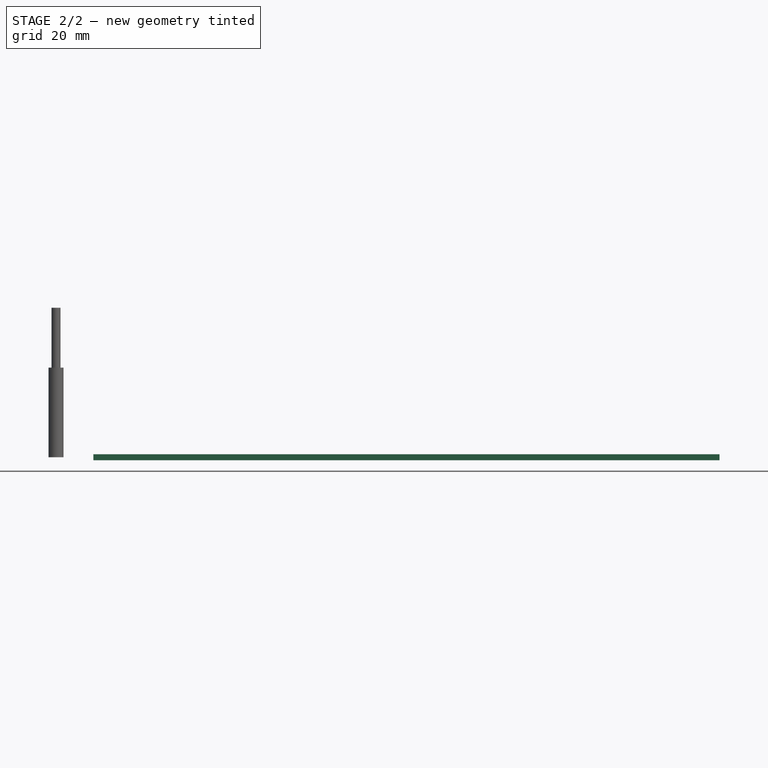
[diagram: stage 2 of 2 — front view after this stage's code; geometry added in this stage tinted green]
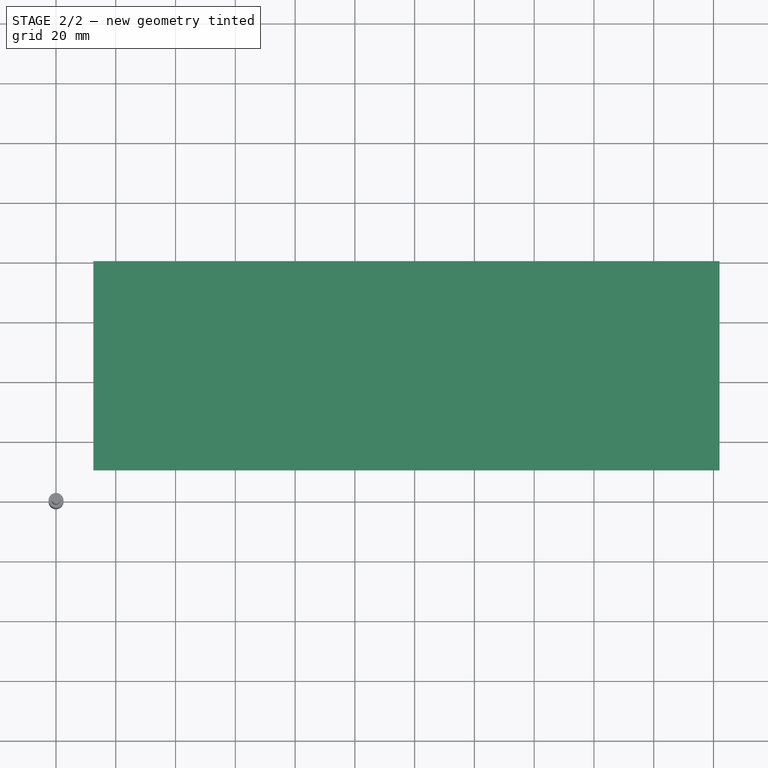
[diagram: stage 2 of 2 — top view after this stage's code; geometry added in this stage tinted green]
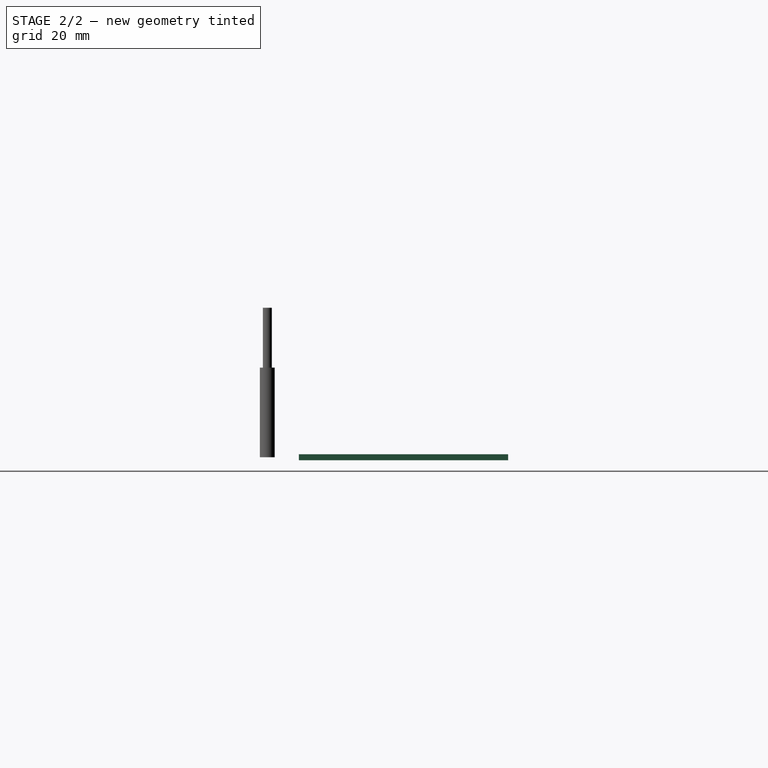
[diagram: stage 2 of 2 — right view after this stage's code; geometry added in this stage tinted green]
FEATURE [Path::FeaturePython] TC__Default_Tool  label="TC: Default Tool"  # Path/CAM operation (typed FeaturePython)
  HorizFeed = 0
  HorizRapid = 0
  SpindleDir = 0
  SpindleSpeed = 0
  Tool = -> ToolBit
  ToolNumber = 1
  VertFeed = 0
  VertRapid = 0
  expr: HorizRapid = SetupSheet.HorizRapid
  expr: VertRapid = SetupSheet.VertRapid
FEATURE [App::DocumentObjectGroup] Tools
  Group = -> [TC__Default_Tool]
FEATURE [Part::FeaturePython] Stock  # WARN: FeaturePython — macro-defined, semantics opaque (R4)
  Base = -> Model
  ExtXneg = 1
  ExtXpos = 1
  ExtYneg = 1
  ExtYpos = 1
  ExtZneg = 1
  ExtZpos = 1
  Placement = pos=(13.4965,11.5692,0) rot=(0,0,1;0rad)
  StockType = FromBase
FEATURE [Path::FeaturePython] Engrave  # Path/CAM operation (typed FeaturePython)
  Active = true
  ClearanceHeight = 6
  CoolantMode = 0
  CycleTime = Cycletime Error
  FinalDepth = -5
  OpFinalDepth = -5
  OpStartDepth = 0
  OpStockZMax = 1
  OpStockZMin = -1
  OpToolDiameter = 5
  SafeHeight = 4
  StartDepth = 0
  StartVertex = 0
  StepDown = 5
  ToolController = -> TC__Default_Tool
  expr: ClearanceHeight = OpStockZMax + SetupSheet.ClearanceHeightOffset
  expr: FinalDepth = OpFinalDepth
  expr: SafeHeight = OpStockZMax + SetupSheet.SafeHeightOffset
  expr: StartDepth = OpStartDepth
  expr: StepDown = OpToolDiameter
FEATURE [App::DocumentObjectGroup] Operations
  Group = -> [Engrave]
FEATURE [Path::FeaturePython] Job  # Path/CAM operation (typed FeaturePython)
  CycleTime = 00:00:00
  Fixtures = G54
  GeometryTolerance = 0.01
  JobType = 0
  Model = -> Model
  Operations = -> Operations
  OrderOutputBy = 0
  PostProcessor = 1
  SetupSheet = -> SetupSheet
  SplitOutput = false
  Stock = -> Stock
  Tools = -> Tools
FEATURE [Sketcher::SketchObject] Sketch002
  ArcFitTolerance = 1e-06
  AttachmentSupport = -> [Sketch001]
  FullyConstrained = false
  MakeInternals = false
  MapMode = 2
  sketch-geometry (8):
    g0: LineSegment StartX=5.58848 StartY=84.635 StartZ=0 EndX=5.58848 EndY=9.19838 EndZ=0
    g1: LineSegment StartX=5.58848 StartY=9.19838 StartZ=0 EndX=239.309 EndY=9.19838 EndZ=0
    g2: LineSegment StartX=239.309 StartY=9.19838 StartZ=0 EndX=239.309 EndY=84.635 EndZ=0
    g3: LineSegment StartX=239.309 StartY=84.635 StartZ=0 EndX=5.58848 EndY=84.635 EndZ=0
    g4: LineSegment StartX=5.58848 StartY=175.437 StartZ=0 EndX=5.58848 EndY=100 EndZ=0
    g5: LineSegment StartX=5.58848 StartY=100 StartZ=0 EndX=239.309 EndY=100 EndZ=0
    g6: LineSegment StartX=239.309 StartY=100 StartZ=0 EndX=239.309 EndY=175.437 EndZ=0
    g7: LineSegment StartX=239.309 StartY=175.437 StartZ=0 EndX=5.58848 EndY=175.437 EndZ=0
  constraints (20):
    c: Coincident(g0,g1)
    c: Coincident(g1,g2)
    c: Coincident(g2,g3)
    c: Coincident(g3,g0)
    c: Vertical(g0)
    c: Vertical(g2)
    c: Horizontal(g1)
    c: Horizontal(g3)
    c: Coincident(g4,g5)
    c: Coincident(g5,g6)
    c: Coincident(g6,g7)
    c: Coincident(g7,g4)
    c: Vertical(g4)
    c: Vertical(g6)
    c: Horizontal(g5)
    c: Horizontal(g7)
    c: Equal(g3,g5)
    c: Equal(g6,g2)
    c: Vertical(g0,g4)
    c: DistanceY(g-1,g4) = 100
note: 1 file-system path scrubbed to <path> (originals preserved in the JSON sidecar)
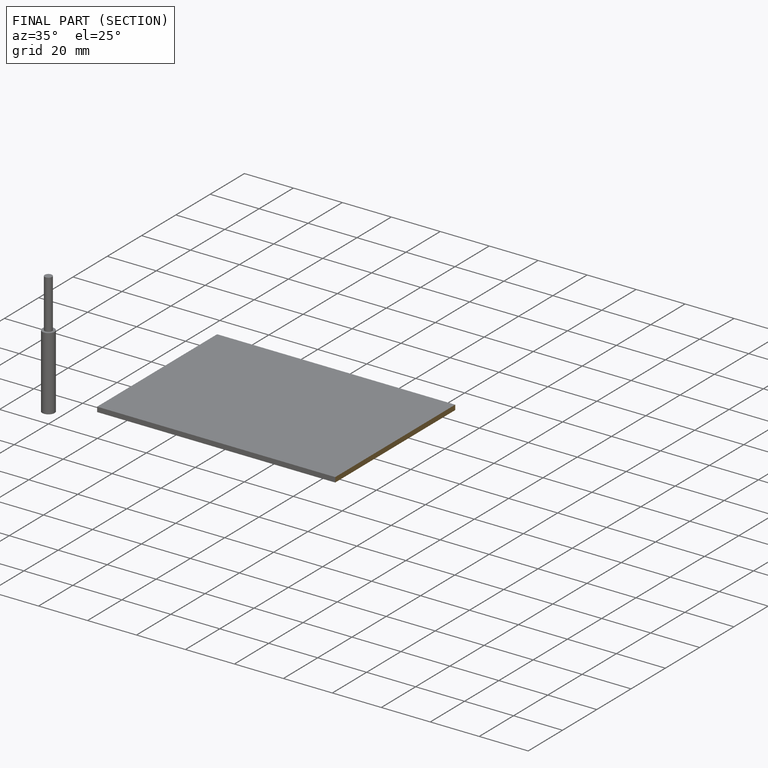
[diagram: finished part — half-section view (interior)]
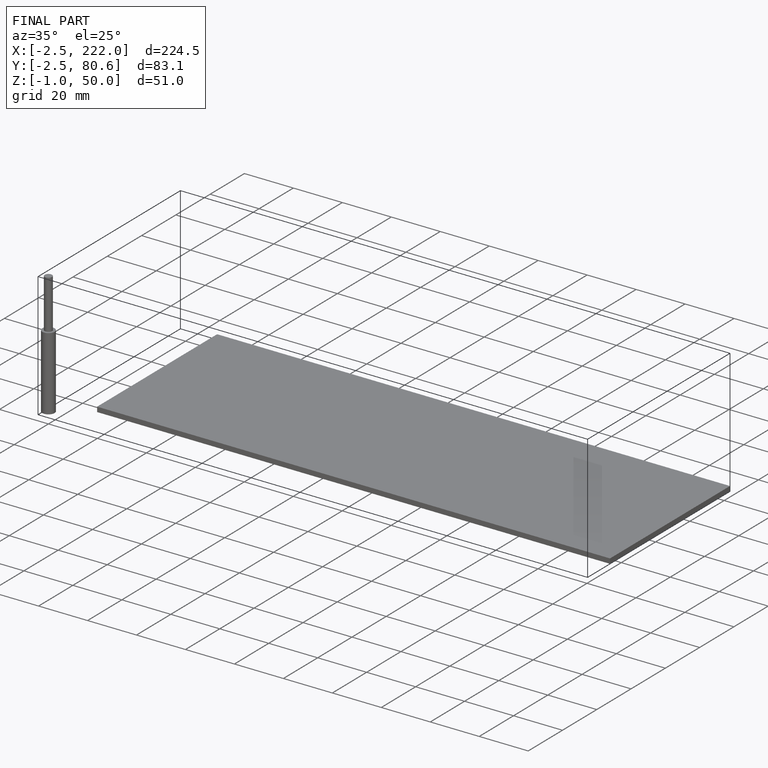
[diagram: finished part — iso view with bounding-box wireframe]
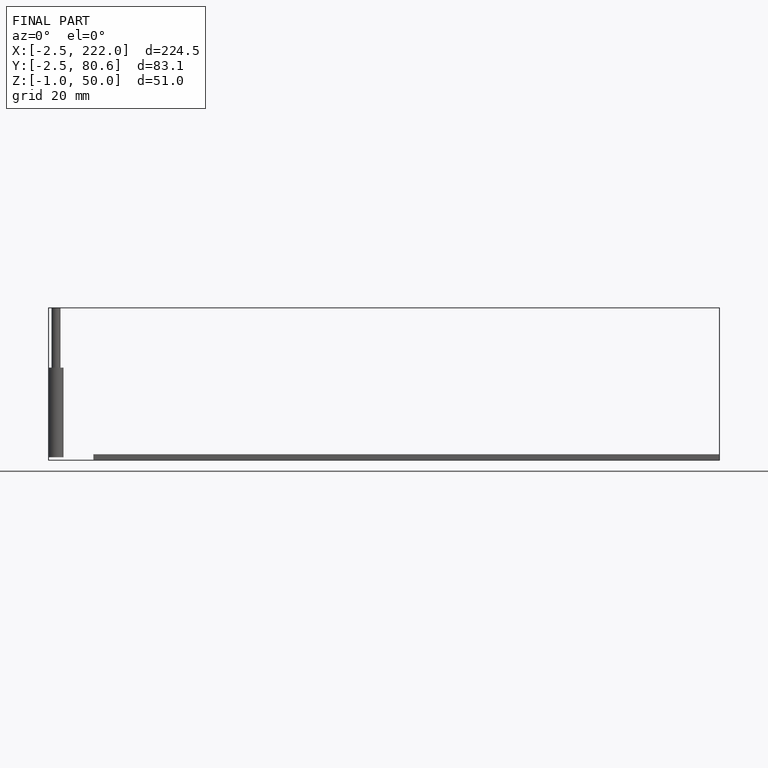
[diagram: finished part — front view with bounding-box wireframe]
